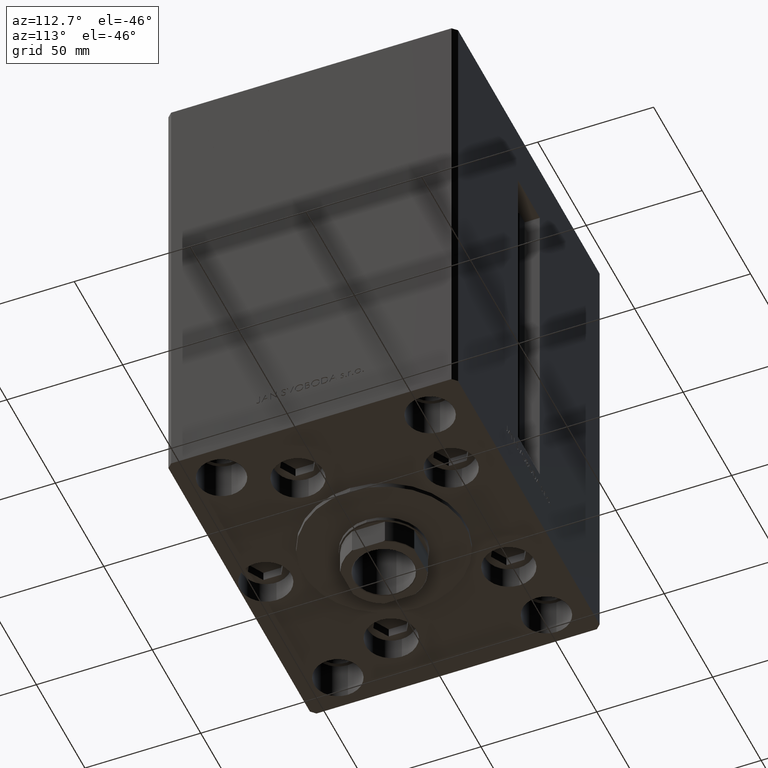
[diagram: clean part render]
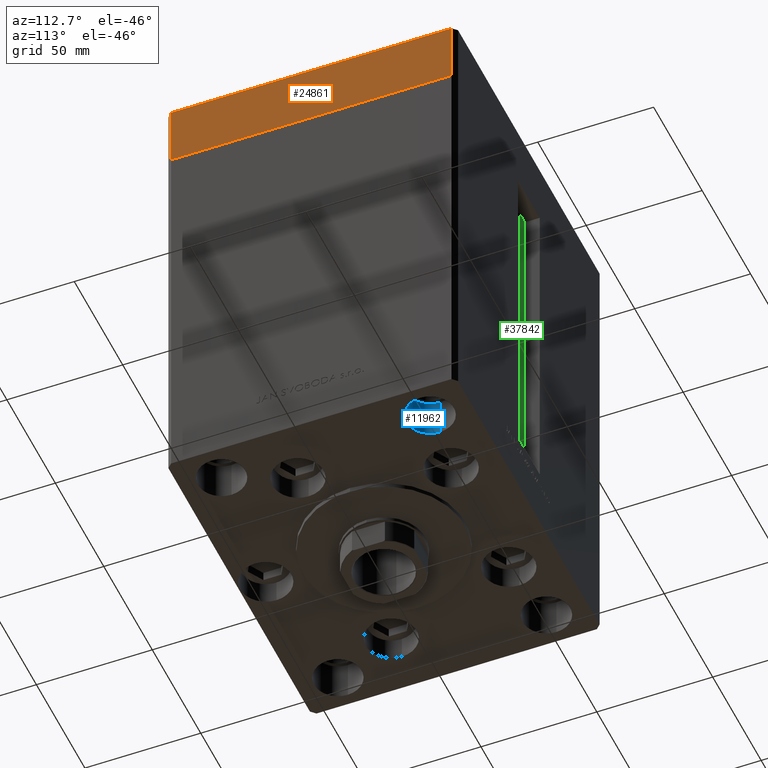
[diagram: same view with three faces highlighted in distinct colors, each labeled with its STEP entity id]
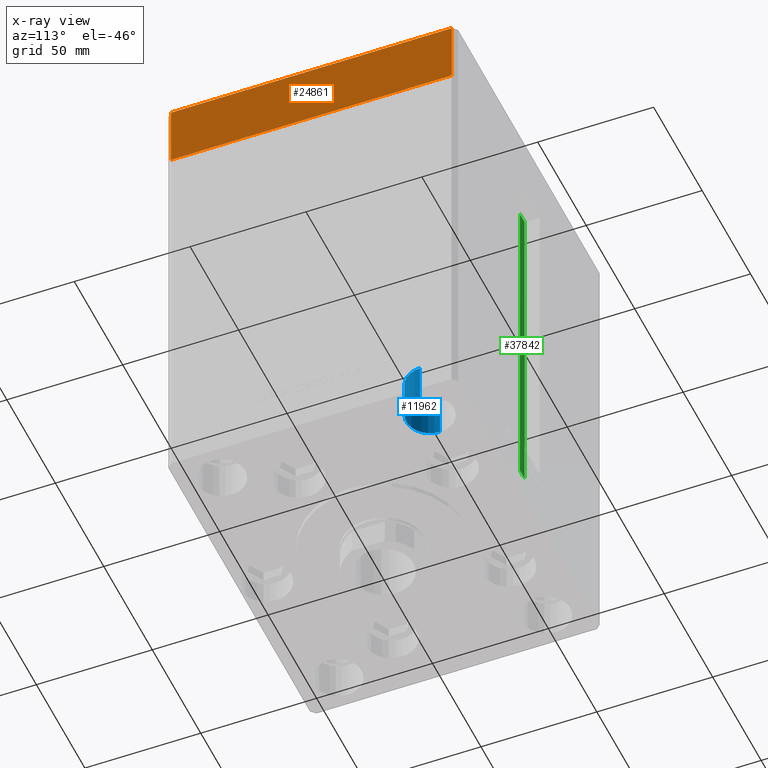
[diagram: x-ray of the same camera — body ghosted, the three highlighted faces saturated]
A machine part, auxiliary view with three faces highlighted in distinct colors.
The next image is the same camera in x-ray (body ghosted, the three faces saturated) — at least one of them is partly hidden behind the body in this view.
Their STEP definitions:

[orange] entity #24861 — the highlighted planar face has unit normal (1, 0, 0).
#608 = VERTEX_POINT ( 'NONE', #2917 ) ;
#2917 = CARTESIAN_POINT ( 'NONE',  ( 75.00000000000001421, -60.50000000000000711, 0.000000000000000000 ) ) ;
#6140 = ORIENTED_EDGE ( 'NONE', *, *, #27241, .F. ) ;
#6144 = LINE ( 'NONE', #43000, #35847 ) ;
#7501 = CARTESIAN_POINT ( 'NONE',  ( 75.00000000000001421, -60.50000000000000711, -27.00000000000000000 ) ) ;
#8020 = CARTESIAN_POINT ( 'NONE',  ( 74.99999999999992895, 60.50000000000002842, -27.00000000000000000 ) ) ;
#9620 = AXIS2_PLACEMENT_3D ( 'NONE', #36728, #48576, #14685 ) ;
#10265 = PLANE ( 'NONE',  #9620 ) ;
#11213 = VERTEX_POINT ( 'NONE', #40385 ) ;
#12213 = VERTEX_POINT ( 'NONE', #37228 ) ;
#14094 = ORIENTED_EDGE ( 'NONE', *, *, #15493, .T. ) ;
#14685 = DIRECTION ( 'NONE',  ( -6.881547673296424104E-16, 1.000000000000000000, 0.000000000000000000 ) ) ;
#14937 = LINE ( 'NONE', #7501, #33206 ) ;
#15493 = EDGE_CURVE ( 'NONE', #21033, #12213, #14937, .T. ) ;
#16003 = VECTOR ( 'NONE', #27794, 1000.000000000000000 ) ;
#16550 = DIRECTION ( 'NONE',  ( 0.000000000000000000, 0.000000000000000000, 1.000000000000000000 ) ) ;
#18633 = FACE_OUTER_BOUND ( 'NONE', #44587, .T. ) ;
#21033 = VERTEX_POINT ( 'NONE', #41157 ) ;
#24861 = ADVANCED_FACE ( 'NONE', ( #18633 ), #10265, .T. ) ;
#27241 = EDGE_CURVE ( 'NONE', #608, #11213, #39976, .T. ) ;
#27316 = EDGE_CURVE ( 'NONE', #12213, #11213, #45872, .T. ) ;
#27794 = DIRECTION ( 'NONE',  ( 0.000000000000000000, 0.000000000000000000, 1.000000000000000000 ) ) ;
#28839 = CARTESIAN_POINT ( 'NONE',  ( 75.00000000000001421, -60.50000000000000711, 0.000000000000000000 ) ) ;
#30069 = ORIENTED_EDGE ( 'NONE', *, *, #27316, .T. ) ;
#31455 = EDGE_CURVE ( 'NONE', #21033, #608, #6144, .T. ) ;
#32607 = VECTOR ( 'NONE', #43926, 1000.000000000000000 ) ;
#33206 = VECTOR ( 'NONE', #45595, 1000.000000000000000 ) ;
#35847 = VECTOR ( 'NONE', #16550, 1000.000000000000000 ) ;
#36728 = CARTESIAN_POINT ( 'NONE',  ( 75.00000000000001421, -60.50000000000000711, -27.00000000000000000 ) ) ;
#37228 = CARTESIAN_POINT ( 'NONE',  ( 74.99999999999992895, 60.50000000000002842, -27.00000000000000000 ) ) ;
#38767 = ORIENTED_EDGE ( 'NONE', *, *, #31455, .F. ) ;
#39976 = LINE ( 'NONE', #28839, #32607 ) ;
#40385 = CARTESIAN_POINT ( 'NONE',  ( 74.99999999999992895, 60.50000000000002842, 0.000000000000000000 ) ) ;
#41157 = CARTESIAN_POINT ( 'NONE',  ( 75.00000000000001421, -60.50000000000000711, -27.00000000000000000 ) ) ;
#43000 = CARTESIAN_POINT ( 'NONE',  ( 75.00000000000001421, -60.50000000000000711, -27.00000000000000000 ) ) ;
#43926 = DIRECTION ( 'NONE',  ( -6.881547673296424104E-16, 1.000000000000000000, 0.000000000000000000 ) ) ;
#44587 = EDGE_LOOP ( 'NONE', ( #6140, #38767, #14094, #30069 ) ) ;
#45595 = DIRECTION ( 'NONE',  ( -6.881547673296424104E-16, 1.000000000000000000, 0.000000000000000000 ) ) ;
#45872 = LINE ( 'NONE', #8020, #16003 ) ;
#48576 = DIRECTION ( 'NONE',  ( 1.000000000000000000, 6.881547673296424104E-16, -0.000000000000000000 ) ) ;

[blue] entity #11962 — the highlighted cylindrical surface (edge-blend (fillet) strip) has radius 10.25 mm, axis along (0, 0, -1).
#497 = LINE ( 'NONE', #45531, #38886 ) ;
#3390 = CYLINDRICAL_SURFACE ( 'NONE', #20425, 10.25000000000000178 ) ;
#5010 = VERTEX_POINT ( 'NONE', #16107 ) ;
#6039 = CIRCLE ( 'NONE', #33687, 10.25000000000000178 ) ;
#6731 = EDGE_CURVE ( 'NONE', #40706, #21485, #6039, .T. ) ;
#8871 = VERTEX_POINT ( 'NONE', #20124 ) ;
#9881 = EDGE_LOOP ( 'NONE', ( #24009, #41620, #35669, #30866 ) ) ;
#10166 = CARTESIAN_POINT ( 'NONE',  ( -49.74999999999999289, 45.00000000000000711, -17.00000000000000000 ) ) ;
#11962 = ADVANCED_FACE ( 'NONE', ( #14770 ), #3390, .F. ) ;
#12377 = CARTESIAN_POINT ( 'NONE',  ( -60.00000000000000000, 45.00000000000000711, -17.00000000000000000 ) ) ;
#14628 = CARTESIAN_POINT ( 'NONE',  ( -70.25000000000000000, 45.00000000000000711, -17.00000000000000000 ) ) ;
#14770 = FACE_OUTER_BOUND ( 'NONE', #9881, .T. ) ;
#14864 = DIRECTION ( 'NONE',  ( -0.000000000000000000, -0.000000000000000000, 1.000000000000000000 ) ) ;
#15984 = EDGE_CURVE ( 'NONE', #8871, #5010, #21350, .T. ) ;
#16027 = DIRECTION ( 'NONE',  ( 1.000000000000000000, 0.000000000000000000, 0.000000000000000000 ) ) ;
#16107 = CARTESIAN_POINT ( 'NONE',  ( -49.74999999999999289, 45.00000000000000711, 0.000000000000000000 ) ) ;
#18470 = CARTESIAN_POINT ( 'NONE',  ( -60.00000000000000000, 45.00000000000000711, -17.00000000000000000 ) ) ;
#20124 = CARTESIAN_POINT ( 'NONE',  ( -70.25000000000000000, 45.00000000000000711, 0.000000000000000000 ) ) ;
#20425 = AXIS2_PLACEMENT_3D ( 'NONE', #18470, #37768, #33547 ) ;
#21350 = CIRCLE ( 'NONE', #22934, 10.25000000000000178 ) ;
#21485 = VERTEX_POINT ( 'NONE', #10166 ) ;
#21798 = CARTESIAN_POINT ( 'NONE',  ( -60.00000000000000000, 45.00000000000000711, 0.000000000000000000 ) ) ;
#22759 = LINE ( 'NONE', #14628, #35214 ) ;
#22934 = AXIS2_PLACEMENT_3D ( 'NONE', #21798, #48761, #16027 ) ;
#24009 = ORIENTED_EDGE ( 'NONE', *, *, #6731, .F. ) ;
#26725 = DIRECTION ( 'NONE',  ( -0.000000000000000000, -0.000000000000000000, 1.000000000000000000 ) ) ;
#27078 = EDGE_CURVE ( 'NONE', #21485, #5010, #497, .T. ) ;
#27453 = DIRECTION ( 'NONE',  ( 1.000000000000000000, 0.000000000000000000, 0.000000000000000000 ) ) ;
#30866 = ORIENTED_EDGE ( 'NONE', *, *, #27078, .F. ) ;
#31220 = CARTESIAN_POINT ( 'NONE',  ( -70.25000000000000000, 45.00000000000000711, -17.00000000000000000 ) ) ;
#33547 = DIRECTION ( 'NONE',  ( 1.000000000000000000, 0.000000000000000000, 0.000000000000000000 ) ) ;
#33687 = AXIS2_PLACEMENT_3D ( 'NONE', #12377, #44858, #27453 ) ;
#35214 = VECTOR ( 'NONE', #26725, 1000.000000000000000 ) ;
#35585 = EDGE_CURVE ( 'NONE', #40706, #8871, #22759, .T. ) ;
#35669 = ORIENTED_EDGE ( 'NONE', *, *, #15984, .T. ) ;
#37768 = DIRECTION ( 'NONE',  ( -0.000000000000000000, -0.000000000000000000, 1.000000000000000000 ) ) ;
#38886 = VECTOR ( 'NONE', #14864, 1000.000000000000000 ) ;
#40706 = VERTEX_POINT ( 'NONE', #31220 ) ;
#41620 = ORIENTED_EDGE ( 'NONE', *, *, #35585, .T. ) ;
#44858 = DIRECTION ( 'NONE',  ( 0.000000000000000000, 0.000000000000000000, 1.000000000000000000 ) ) ;
#45531 = CARTESIAN_POINT ( 'NONE',  ( -49.74999999999999289, 45.00000000000000711, -17.00000000000000000 ) ) ;
#48761 = DIRECTION ( 'NONE',  ( 0.000000000000000000, 0.000000000000000000, 1.000000000000000000 ) ) ;

[green] entity #37842 — the highlighted planar face has unit normal (0, -1, 0).
#1999 = VERTEX_POINT ( 'NONE', #16609 ) ;
#2021 = LINE ( 'NONE', #17851, #16042 ) ;
#3565 = AXIS2_PLACEMENT_3D ( 'NONE', #33224, #44838, #7480 ) ;
#4470 = DIRECTION ( 'NONE',  ( -1.000000000000000000, 0.000000000000000000, 0.000000000000000000 ) ) ;
#5144 = EDGE_CURVE ( 'NONE', #38825, #13467, #40091, .T. ) ;
#5189 = VECTOR ( 'NONE', #37597, 1000.000000000000000 ) ;
#6198 = CARTESIAN_POINT ( 'NONE',  ( -6.183333333334001480, 55.99999999999999289, 0.000000000000000000 ) ) ;
#7480 = DIRECTION ( 'NONE',  ( 0.000000000000000000, 0.000000000000000000, -1.000000000000000000 ) ) ;
#10017 = VERTEX_POINT ( 'NONE', #42914 ) ;
#10309 = EDGE_CURVE ( 'NONE', #1999, #10017, #34404, .T. ) ;
#10408 = DIRECTION ( 'NONE',  ( -0.000000000000000000, -0.000000000000000000, 1.000000000000000000 ) ) ;
#10744 = EDGE_LOOP ( 'NONE', ( #12594, #25676, #30970, #10898 ) ) ;
#10898 = ORIENTED_EDGE ( 'NONE', *, *, #10309, .F. ) ;
#11699 = VECTOR ( 'NONE', #4470, 1000.000000000000000 ) ;
#12594 = ORIENTED_EDGE ( 'NONE', *, *, #17672, .F. ) ;
#13467 = VERTEX_POINT ( 'NONE', #30105 ) ;
#16042 = VECTOR ( 'NONE', #28979, 1000.000000000000000 ) ;
#16609 = CARTESIAN_POINT ( 'NONE',  ( -6.183333333334001480, 55.99999999999999289, 147.0000000000000000 ) ) ;
#17672 = EDGE_CURVE ( 'NONE', #13467, #1999, #48005, .T. ) ;
#17851 = CARTESIAN_POINT ( 'NONE',  ( -11.25000000000000178, 55.99999999999999289, 0.000000000000000000 ) ) ;
#18065 = CARTESIAN_POINT ( 'NONE',  ( -6.183333333334001480, 55.99999999999999289, 0.000000000000000000 ) ) ;
#18140 = FACE_OUTER_BOUND ( 'NONE', #10744, .T. ) ;
#18853 = PLANE ( 'NONE',  #3565 ) ;
#18859 = CARTESIAN_POINT ( 'NONE',  ( -11.25000000000000178, 55.99999999999999289, 0.000000000000000000 ) ) ;
#22851 = VECTOR ( 'NONE', #10408, 1000.000000000000000 ) ;
#25676 = ORIENTED_EDGE ( 'NONE', *, *, #5144, .F. ) ;
#28274 = EDGE_CURVE ( 'NONE', #38825, #10017, #2021, .T. ) ;
#28979 = DIRECTION ( 'NONE',  ( -0.000000000000000000, -0.000000000000000000, 1.000000000000000000 ) ) ;
#30105 = CARTESIAN_POINT ( 'NONE',  ( -6.183333333334001480, 55.99999999999999289, 0.000000000000000000 ) ) ;
#30970 = ORIENTED_EDGE ( 'NONE', *, *, #28274, .T. ) ;
#33224 = CARTESIAN_POINT ( 'NONE',  ( -6.183333333334001480, 55.99999999999999289, 0.000000000000000000 ) ) ;
#34404 = LINE ( 'NONE', #42055, #11699 ) ;
#37597 = DIRECTION ( 'NONE',  ( 1.000000000000000000, -0.000000000000000000, -0.000000000000000000 ) ) ;
#37842 = ADVANCED_FACE ( 'NONE', ( #18140 ), #18853, .F. ) ;
#38825 = VERTEX_POINT ( 'NONE', #18859 ) ;
#40091 = LINE ( 'NONE', #6198, #5189 ) ;
#42055 = CARTESIAN_POINT ( 'NONE',  ( 0.000000000000000000, 55.99999999999999289, 147.0000000000000000 ) ) ;
#42914 = CARTESIAN_POINT ( 'NONE',  ( -11.25000000000000178, 55.99999999999999289, 147.0000000000000000 ) ) ;
#44838 = DIRECTION ( 'NONE',  ( 0.000000000000000000, -1.000000000000000000, -0.000000000000000000 ) ) ;
#48005 = LINE ( 'NONE', #18065, #22851 ) ;